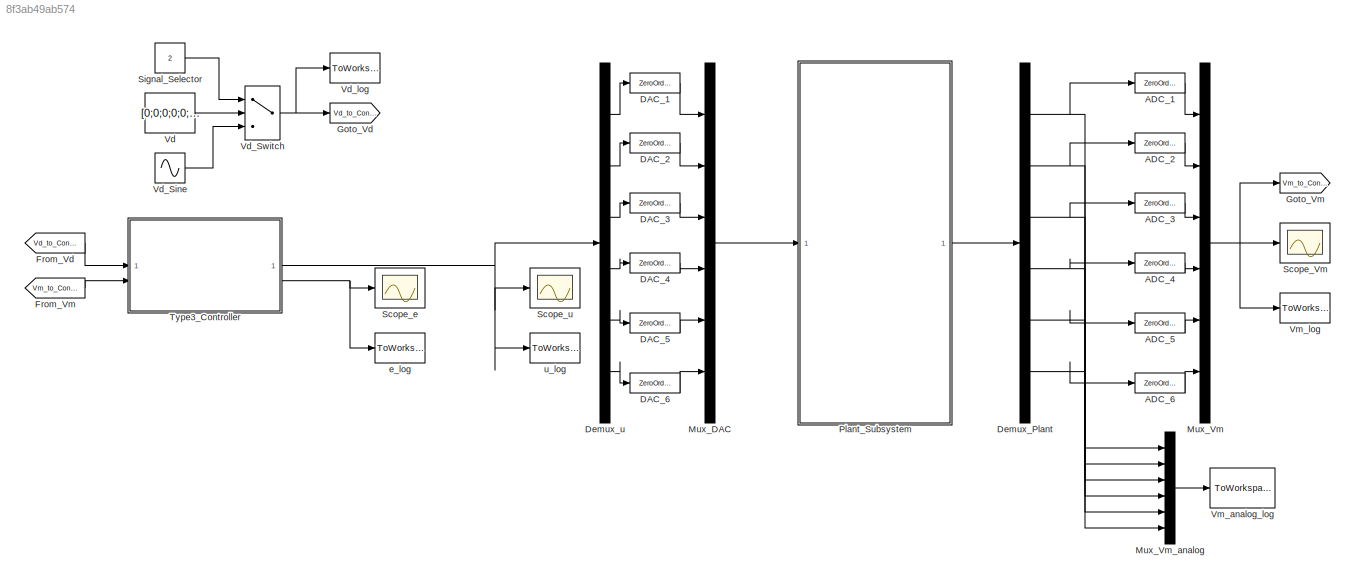
MODEL slx_8f3ab49ab574
KIND model
CONFIG AbsTol = auto
CONFIG EnableMultiTasking = off
CONFIG FixedStep = 1e-5
CONFIG MaxStep = 1e-05
CONFIG MinStep = auto
CONFIG RelTol = 1e-3
CONFIG SampleTimeConstraint = Unconstrained
CONFIG SolverName = ode23tb
CONFIG StartTime = 0.0
CONFIG StopTime = 0.1
BLOCK [ZeroOrderHold] ADC_1
  SampleTime = 1e-05
BLOCK [ZeroOrderHold] ADC_2
  SampleTime = 1e-05
BLOCK [ZeroOrderHold] ADC_3
  SampleTime = 1e-05
BLOCK [ZeroOrderHold] ADC_4
  SampleTime = 1e-05
BLOCK [ZeroOrderHold] ADC_5
  SampleTime = 1e-05
BLOCK [ZeroOrderHold] ADC_6
  SampleTime = 1e-05
BLOCK [ZeroOrderHold] DAC_1
  SampleTime = 1e-05
BLOCK [ZeroOrderHold] DAC_2
  SampleTime = 1e-05
BLOCK [ZeroOrderHold] DAC_3
  SampleTime = 1e-05
BLOCK [ZeroOrderHold] DAC_4
  SampleTime = 1e-05
BLOCK [ZeroOrderHold] DAC_5
  SampleTime = 1e-05
BLOCK [ZeroOrderHold] DAC_6
  SampleTime = 1e-05
BLOCK [Demux] Demux_Plant
  Outputs = 6
BLOCK [Demux] Demux_u
  Outputs = 6
BLOCK [From] From_Vd
  GotoTag = Vd_to_Controller
BLOCK [From] From_Vm
  GotoTag = Vm_to_Controller
BLOCK [Goto] Goto_Vd
  GotoTag = Vd_to_Controller
BLOCK [Goto] Goto_Vm
  GotoTag = Vm_to_Controller
BLOCK [Mux] Mux_DAC
  DisplayOption = bar
  Inputs = 6
BLOCK [Mux] Mux_Vm
  DisplayOption = bar
  Inputs = 6
BLOCK [Mux] Mux_Vm_analog
  DisplayOption = bar
  Inputs = 6
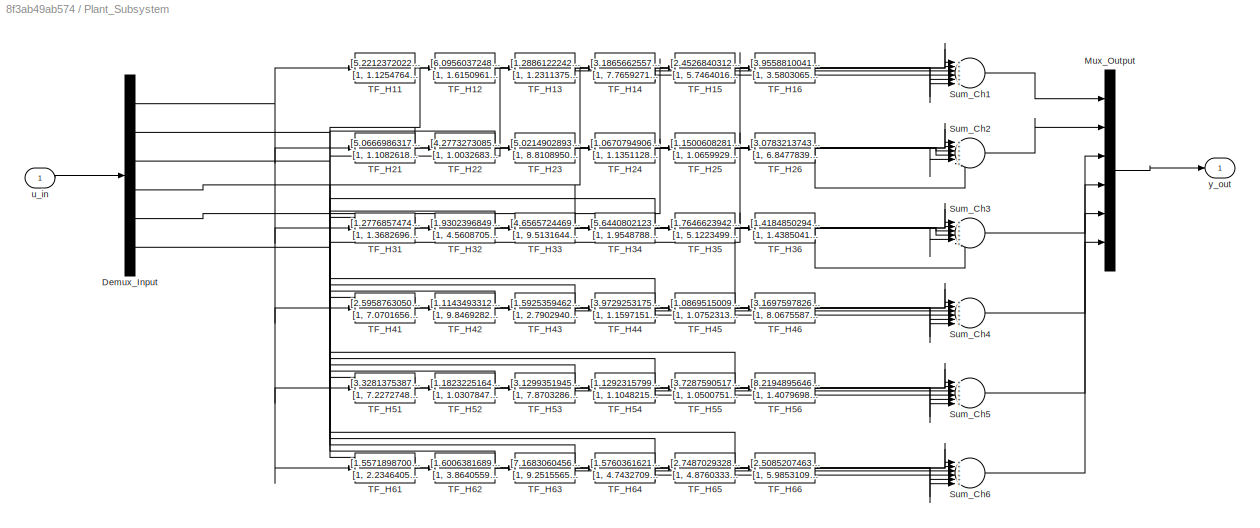
BLOCK [SubSystem] Plant_Subsystem
BLOCK [Demux] Plant_Subsystem/Demux_Input
  Outputs = 6
BLOCK [Mux] Plant_Subsystem/Mux_Output
  DisplayOption = bar
  Inputs = 6
BLOCK [Sum] Plant_Subsystem/Sum_Ch1
  Inputs = ++++++
BLOCK [Sum] Plant_Subsystem/Sum_Ch2
  Inputs = ++++++
BLOCK [Sum] Plant_Subsystem/Sum_Ch3
  Inputs = ++++++
BLOCK [Sum] Plant_Subsystem/Sum_Ch4
  Inputs = ++++++
BLOCK [Sum] Plant_Subsystem/Sum_Ch5
  Inputs = ++++++
BLOCK [Sum] Plant_Subsystem/Sum_Ch6
  Inputs = ++++++
BLOCK [TransferFcn] Plant_Subsystem/TF_H11
  Denominator = [1, 1.125476429798e+04, 2.207970207484e+07]
  Numerator = [5.221237202258e+06]
BLOCK [TransferFcn] Plant_Subsystem/TF_H12
  Denominator = [1, 1.615096196557e+03, 9.571173160946e+06]
  Numerator = [6.095603724823e+04]
BLOCK [TransferFcn] Plant_Subsystem/TF_H13
  Denominator = [1, 1.231137597589e+04, 3.947206038787e+07]
  Numerator = [1.288612224236e+06]
BLOCK [TransferFcn] Plant_Subsystem/TF_H14
  Denominator = [1, 7.765927137710e+03, 9.263818981101e+06]
  Numerator = [3.186566255776e+05]
BLOCK [TransferFcn] Plant_Subsystem/TF_H15
  Denominator = [1, 5.746401647961e+03, 5.999997285542e+06]
  Numerator = [2.452684031253e+05]
BLOCK [TransferFcn] Plant_Subsystem/TF_H16
  Denominator = [1, 3.580306515557e+03, 1.155083131186e+07]
  Numerator = [3.955881004140e+05]
BLOCK [TransferFcn] Plant_Subsystem/TF_H21
  Denominator = [1, 1.108261849372e+03, 1.373615752245e+07]
  Numerator = [5.066698631790e+04]
BLOCK [TransferFcn] Plant_Subsystem/TF_H22
  Denominator = [1, 1.003268373777e+04, 1.517256424974e+07]
  Numerator = [4.277327308593e+06]
BLOCK [TransferFcn] Plant_Subsystem/TF_H23
  Denominator = [1, 8.810895080316e+03, 1.176013147465e+07]
  Numerator = [5.021490289304e+05]
BLOCK [TransferFcn] Plant_Subsystem/TF_H24
  Denominator = [1, 1.135112820448e+04, 1.579872906385e+07]
  Numerator = [1.067079490600e+06]
BLOCK [TransferFcn] Plant_Subsystem/TF_H25
  Denominator = [1, 1.065992916636e+04, 1.476096604860e+07]
  Numerator = [1.150060828107e+06]
BLOCK [TransferFcn] Plant_Subsystem/TF_H26
  Denominator = [1, 6.847783968129e+03, 8.350689199857e+06]
  Numerator = [3.078321374306e+05]
BLOCK [TransferFcn] Plant_Subsystem/TF_H31
  Denominator = [1, 1.368269686933e+04, 3.407241686199e+07]
  Numerator = [1.277685747428e+06]
BLOCK [TransferFcn] Plant_Subsystem/TF_H32
  Denominator = [1, 4.560870597302e+03, 5.880205842512e+06]
  Numerator = [1.930239684968e+05]
BLOCK [TransferFcn] Plant_Subsystem/TF_H33
  Denominator = [1, 9.513164457161e+03, 2.210308479198e+07]
  Numerator = [4.656572446985e+06]
BLOCK [TransferFcn] Plant_Subsystem/TF_H34
  Denominator = [1, 1.954878812118e+03, 9.380728837338e+06]
  Numerator = [5.644080212304e+04]
BLOCK [TransferFcn] Plant_Subsystem/TF_H35
  Denominator = [1, 5.122349981324e+03, 6.659709663387e+06]
  Numerator = [1.764662394212e+05]
BLOCK [TransferFcn] Plant_Subsystem/TF_H36
  Denominator = [1, 1.438504147902e+03, 4.166335044060e+06]
  Numerator = [1.418485029440e+05]
BLOCK [TransferFcn] Plant_Subsystem/TF_H41
  Denominator = [1, 7.070165651413e+03, 1.060240979066e+07]
  Numerator = [2.595876305066e+05]
BLOCK [TransferFcn] Plant_Subsystem/TF_H42
  Denominator = [1, 9.846928206402e+03, 1.433078717084e+07]
  Numerator = [1.114349331223e+06]
BLOCK [TransferFcn] Plant_Subsystem/TF_H43
  Denominator = [1, 2.790294019501e+03, 2.871898227443e+07]
  Numerator = [1.592535946272e+05]
BLOCK [TransferFcn] Plant_Subsystem/TF_H44
  Denominator = [1, 1.159715140811e+04, 1.682154085249e+07]
  Numerator = [3.972925317547e+06]
BLOCK [TransferFcn] Plant_Subsystem/TF_H45
  Denominator = [1, 1.075231371220e+04, 1.409904497821e+07]
  Numerator = [1.086951500933e+06]
BLOCK [TransferFcn] Plant_Subsystem/TF_H46
  Denominator = [1, 8.067558736035e+03, 1.315975400997e+07]
  Numerator = [3.169759782656e+05]
BLOCK [TransferFcn] Plant_Subsystem/TF_H51
  Denominator = [1, 7.227274813518e+03, 8.052571157216e+06]
  Numerator = [3.328137538766e+05]
BLOCK [TransferFcn] Plant_Subsystem/TF_H52
  Denominator = [1, 1.030784744910e+04, 1.554206521303e+07]
  Numerator = [1.182322516481e+06]
BLOCK [TransferFcn] Plant_Subsystem/TF_H53
  Denominator = [1, 7.870328655037e+03, 1.337774667821e+07]
  Numerator = [3.129935194599e+05]
BLOCK [TransferFcn] Plant_Subsystem/TF_H54
  Denominator = [1, 1.104821595243e+04, 1.568676428581e+07]
  Numerator = [1.129231579925e+06]
BLOCK [TransferFcn] Plant_Subsystem/TF_H55
  Denominator = [1, 1.050075182774e+04, 1.449217376803e+07]
  Numerator = [3.728759051745e+06]
BLOCK [TransferFcn] Plant_Subsystem/TF_H56
  Denominator = [1, 1.407969854523e+03, 1.853348985437e+07]
  Numerator = [8.219489564647e+04]
BLOCK [TransferFcn] Plant_Subsystem/TF_H61
  Denominator = [1, 2.234640585923e+04, 6.373749577675e+07]
  Numerator = [1.557189870041e+06]
BLOCK [TransferFcn] Plant_Subsystem/TF_H62
  Denominator = [1, 3.864055922471e+03, 4.849839120469e+06]
  Numerator = [1.600638168987e+05]
BLOCK [TransferFcn] Plant_Subsystem/TF_H63
  Denominator = [1, 9.251556589809e+03, 2.787193801633e+07]
  Numerator = [7.168306045699e+05]
BLOCK [TransferFcn] Plant_Subsystem/TF_H64
  Denominator = [1, 4.743270970318e+03, 6.428360363602e+06]
  Numerator = [1.576036162155e+05]
BLOCK [TransferFcn] Plant_Subsystem/TF_H65
  Denominator = [1, 4.876033357949e+02, 9.309786245813e+06]
  Numerator = [2.748702932822e+04]
BLOCK [TransferFcn] Plant_Subsystem/TF_H66
  Denominator = [1, 5.985310903650e+03, 1.360142788272e+07]
  Numerator = [2.508520746356e+06]
BLOCK [Inport] Plant_Subsystem/u_in
BLOCK [Outport] Plant_Subsystem/y_out
BLOCK [Scope] Scope_Vm
  Floating = off
  NumInputPorts = 1
  ScopeSpecificationString = Simulink.scopes.TimeScopeBlockCfg('CurrentConfiguration', extmgr.ConfigurationSet(extmgr.Configuration('Core','General UI',true),extmgr.Configuration('Core','Source UI',true),extmgr.Configuration('Sources','WiredSimulink',true),extmgr.Configuration('Visuals','Time Domain',true,'SerializedDisplays',{struct('MinYLimReal','-0.03','MaxYLimReal','0.12675','YLabelReal','','MinYLimMag','0.00000','MaxYLim...<+1494ch>
BLOCK [Scope] Scope_e
  Floating = off
  NumInputPorts = 1
  ScopeSpecificationString = Simulink.scopes.TimeScopeBlockCfg('CurrentConfiguration', extmgr.ConfigurationSet(extmgr.Configuration('Core','General UI',true),extmgr.Configuration('Core','Source UI',true),extmgr.Configuration('Sources','WiredSimulink',true),extmgr.Configuration('Visuals','Time Domain',true,'SerializedDisplays',{struct('MinYLimReal','-0.00521','MaxYLimReal','0.0992','YLabelReal','','MinYLimMag','0.00000','MaxYL...<+1586ch>
BLOCK [Scope] Scope_u
  Floating = off
  NumInputPorts = 1
  ScopeSpecificationString = Simulink.scopes.TimeScopeBlockCfg('CurrentConfiguration', extmgr.ConfigurationSet(extmgr.Configuration('Core','General UI',true),extmgr.Configuration('Core','Source UI',true),extmgr.Configuration('Sources','WiredSimulink',true),extmgr.Configuration('Visuals','Time Domain',true,'SerializedDisplays',{struct('MinYLimReal','-9.96563','MaxYLimReal','15.04542','YLabelReal','','MinYLimMag','0.00000','Max...<+1575ch>
BLOCK [Constant] Signal_Selector
  Value = 2
BLOCK [ModelReference] Type3_Controller
  ModelNameDialog = type3_controller.slx
  ModelReferenceVersion = 1.14
BLOCK [Constant] Vd
  SampleTime = 1e-05
  Value = [0;0;0;0;0;0]
BLOCK [Sin] Vd_Sine
  Amplitude = [0;0;0;0;0.5;0]
  Bias = [0; 0; 0; 0; 0; 0]
  Frequency = 3141.5927
  Phase = [0;0;0;0;0;0]
  SampleTime = 1e-5
BLOCK [MultiPortSwitch] Vd_Switch
  InputSameDT = off
  Inputs = 2
  SaturateOnIntegerOverflow = off
BLOCK [ToWorkspace] Vd_log
  MaxDataPoints = inf
  SampleTime = -1
  Save2DSignal = 2-D array (concatenate along first dimension)
  VariableName = Vd
BLOCK [ToWorkspace] Vm_analog_log
  MaxDataPoints = inf
  SampleTime = -1
  Save2DSignal = 2-D array (concatenate along first dimension)
  VariableName = Vm_analog
BLOCK [ToWorkspace] Vm_log
  MaxDataPoints = inf
  SampleTime = -1
  Save2DSignal = 2-D array (concatenate along first dimension)
  VariableName = Vm
BLOCK [ToWorkspace] e_log
  MaxDataPoints = inf
  SampleTime = -1
  Save2DSignal = 2-D array (concatenate along first dimension)
  VariableName = e
BLOCK [ToWorkspace] u_log
  MaxDataPoints = inf
  SampleTime = -1
  Save2DSignal = 2-D array (concatenate along first dimension)
  VariableName = u
LINE ADC_1:1 -> Mux_Vm:1
LINE ADC_2:1 -> Mux_Vm:2
LINE ADC_3:1 -> Mux_Vm:3
LINE ADC_4:1 -> Mux_Vm:4
LINE ADC_5:1 -> Mux_Vm:5
LINE ADC_6:1 -> Mux_Vm:6
LINE DAC_1:1 -> Mux_DAC:1
LINE DAC_2:1 -> Mux_DAC:2
LINE DAC_3:1 -> Mux_DAC:3
LINE DAC_4:1 -> Mux_DAC:4
LINE DAC_5:1 -> Mux_DAC:5
LINE DAC_6:1 -> Mux_DAC:6
NET Demux_Plant:1 -> ADC_1:1, Mux_Vm_analog:1
NET Demux_Plant:2 -> ADC_2:1, Mux_Vm_analog:2
NET Demux_Plant:3 -> ADC_3:1, Mux_Vm_analog:3
NET Demux_Plant:4 -> ADC_4:1, Mux_Vm_analog:4
NET Demux_Plant:5 -> ADC_5:1, Mux_Vm_analog:5
NET Demux_Plant:6 -> ADC_6:1, Mux_Vm_analog:6
LINE Demux_u:1 -> DAC_1:1
LINE Demux_u:2 -> DAC_2:1
LINE Demux_u:3 -> DAC_3:1
LINE Demux_u:4 -> DAC_4:1
LINE Demux_u:5 -> DAC_5:1
LINE Demux_u:6 -> DAC_6:1
LINE From_Vd:1 -> Type3_Controller:1
LINE From_Vm:1 -> Type3_Controller:2
LINE Mux_DAC:1 -> Plant_Subsystem:1
NET Mux_Vm:1 -> Goto_Vm:1, Scope_Vm:1, Vm_log:1
LINE Mux_Vm_analog:1 -> Vm_analog_log:1
NET Plant_Subsystem/Demux_Input:1 -> Plant_Subsystem/TF_H11:1, Plant_Subsystem/TF_H21:1, Plant_Subsystem/TF_H31:1, Plant_Subsystem/TF_H41:1, Plant_Subsystem/TF_H51:1, Plant_Subsystem/TF_H61:1
NET Plant_Subsystem/Demux_Input:2 -> Plant_Subsystem/TF_H12:1, Plant_Subsystem/TF_H22:1, Plant_Subsystem/TF_H32:1, Plant_Subsystem/TF_H42:1, Plant_Subsystem/TF_H52:1, Plant_Subsystem/TF_H62:1
NET Plant_Subsystem/Demux_Input:3 -> Plant_Subsystem/TF_H13:1, Plant_Subsystem/TF_H23:1, Plant_Subsystem/TF_H33:1, Plant_Subsystem/TF_H43:1, Plant_Subsystem/TF_H53:1, Plant_Subsystem/TF_H63:1
NET Plant_Subsystem/Demux_Input:4 -> Plant_Subsystem/TF_H14:1, Plant_Subsystem/TF_H24:1, Plant_Subsystem/TF_H34:1, Plant_Subsystem/TF_H44:1, Plant_Subsystem/TF_H54:1, Plant_Subsystem/TF_H64:1
NET Plant_Subsystem/Demux_Input:5 -> Plant_Subsystem/TF_H15:1, Plant_Subsystem/TF_H25:1, Plant_Subsystem/TF_H35:1, Plant_Subsystem/TF_H45:1, Plant_Subsystem/TF_H55:1, Plant_Subsystem/TF_H65:1
NET Plant_Subsystem/Demux_Input:6 -> Plant_Subsystem/TF_H16:1, Plant_Subsystem/TF_H26:1, Plant_Subsystem/TF_H36:1, Plant_Subsystem/TF_H46:1, Plant_Subsystem/TF_H56:1, Plant_Subsystem/TF_H66:1
LINE Plant_Subsystem/Mux_Output:1 -> Plant_Subsystem/y_out:1
LINE Plant_Subsystem/Sum_Ch1:1 -> Plant_Subsystem/Mux_Output:1
LINE Plant_Subsystem/Sum_Ch2:1 -> Plant_Subsystem/Mux_Output:2
LINE Plant_Subsystem/Sum_Ch3:1 -> Plant_Subsystem/Mux_Output:3
LINE Plant_Subsystem/Sum_Ch4:1 -> Plant_Subsystem/Mux_Output:4
LINE Plant_Subsystem/Sum_Ch5:1 -> Plant_Subsystem/Mux_Output:5
LINE Plant_Subsystem/Sum_Ch6:1 -> Plant_Subsystem/Mux_Output:6
LINE Plant_Subsystem/TF_H11:1 -> Plant_Subsystem/Sum_Ch1:1
LINE Plant_Subsystem/TF_H12:1 -> Plant_Subsystem/Sum_Ch1:2
LINE Plant_Subsystem/TF_H13:1 -> Plant_Subsystem/Sum_Ch1:3
LINE Plant_Subsystem/TF_H14:1 -> Plant_Subsystem/Sum_Ch1:4
LINE Plant_Subsystem/TF_H15:1 -> Plant_Subsystem/Sum_Ch1:5
LINE Plant_Subsystem/TF_H16:1 -> Plant_Subsystem/Sum_Ch1:6
LINE Plant_Subsystem/TF_H21:1 -> Plant_Subsystem/Sum_Ch2:1
LINE Plant_Subsystem/TF_H22:1 -> Plant_Subsystem/Sum_Ch2:2
LINE Plant_Subsystem/TF_H23:1 -> Plant_Subsystem/Sum_Ch2:3
LINE Plant_Subsystem/TF_H24:1 -> Plant_Subsystem/Sum_Ch2:4
LINE Plant_Subsystem/TF_H25:1 -> Plant_Subsystem/Sum_Ch2:5
LINE Plant_Subsystem/TF_H26:1 -> Plant_Subsystem/Sum_Ch2:6
LINE Plant_Subsystem/TF_H31:1 -> Plant_Subsystem/Sum_Ch3:1
LINE Plant_Subsystem/TF_H32:1 -> Plant_Subsystem/Sum_Ch3:2
LINE Plant_Subsystem/TF_H33:1 -> Plant_Subsystem/Sum_Ch3:3
LINE Plant_Subsystem/TF_H34:1 -> Plant_Subsystem/Sum_Ch3:4
LINE Plant_Subsystem/TF_H35:1 -> Plant_Subsystem/Sum_Ch3:5
LINE Plant_Subsystem/TF_H36:1 -> Plant_Subsystem/Sum_Ch3:6
LINE Plant_Subsystem/TF_H41:1 -> Plant_Subsystem/Sum_Ch4:1
LINE Plant_Subsystem/TF_H42:1 -> Plant_Subsystem/Sum_Ch4:2
LINE Plant_Subsystem/TF_H43:1 -> Plant_Subsystem/Sum_Ch4:3
LINE Plant_Subsystem/TF_H44:1 -> Plant_Subsystem/Sum_Ch4:4
LINE Plant_Subsystem/TF_H45:1 -> Plant_Subsystem/Sum_Ch4:5
LINE Plant_Subsystem/TF_H46:1 -> Plant_Subsystem/Sum_Ch4:6
LINE Plant_Subsystem/TF_H51:1 -> Plant_Subsystem/Sum_Ch5:1
LINE Plant_Subsystem/TF_H52:1 -> Plant_Subsystem/Sum_Ch5:2
LINE Plant_Subsystem/TF_H53:1 -> Plant_Subsystem/Sum_Ch5:3
LINE Plant_Subsystem/TF_H54:1 -> Plant_Subsystem/Sum_Ch5:4
LINE Plant_Subsystem/TF_H55:1 -> Plant_Subsystem/Sum_Ch5:5
LINE Plant_Subsystem/TF_H56:1 -> Plant_Subsystem/Sum_Ch5:6
LINE Plant_Subsystem/TF_H61:1 -> Plant_Subsystem/Sum_Ch6:1
LINE Plant_Subsystem/TF_H62:1 -> Plant_Subsystem/Sum_Ch6:2
LINE Plant_Subsystem/TF_H63:1 -> Plant_Subsystem/Sum_Ch6:3
LINE Plant_Subsystem/TF_H64:1 -> Plant_Subsystem/Sum_Ch6:4
LINE Plant_Subsystem/TF_H65:1 -> Plant_Subsystem/Sum_Ch6:5
LINE Plant_Subsystem/TF_H66:1 -> Plant_Subsystem/Sum_Ch6:6
LINE Plant_Subsystem/u_in:1 -> Plant_Subsystem/Demux_Input:1
LINE Plant_Subsystem:1 -> Demux_Plant:1
LINE Signal_Selector:1 -> Vd_Switch:1
NET Type3_Controller:1 -> Demux_u:1, Scope_u:1, u_log:1
NET Type3_Controller:2 -> Scope_e:1, e_log:1
LINE Vd:1 -> Vd_Switch:2
LINE Vd_Sine:1 -> Vd_Switch:3
NET Vd_Switch:1 -> Goto_Vd:1, Vd_log:1
note: NET lines group one-source signal fan-out (src -> all destinations, sorted); 1:1 wires keep LINE
